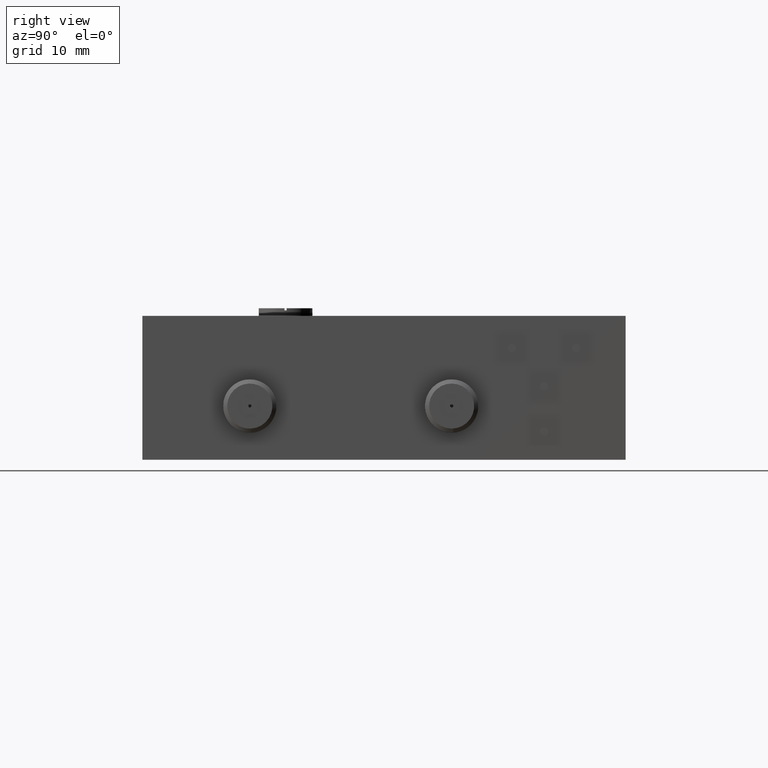
[diagram: clean part render]
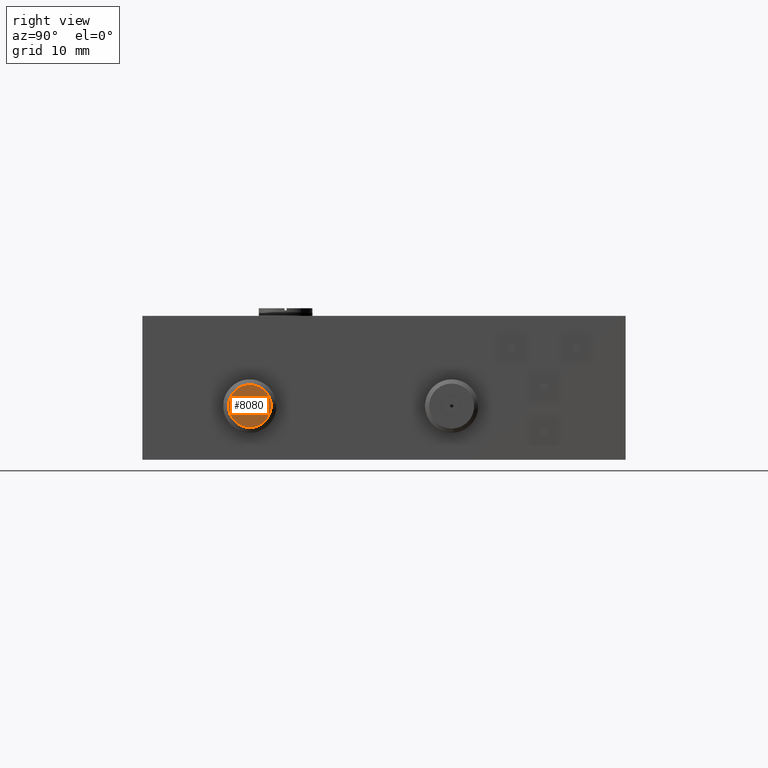
[diagram: same view with one face highlighted and labeled with its STEP entity id]
A machine part, right view. The second image highlights one B-rep face of the part: STEP entity #8080.
In plain terms, the highlighted planar face has unit normal (-1, -0, 0).
Its self-contained STEP definition (entity closure, byte-faithful):
#112 = VERTEX_POINT ( 'NONE', #11651 ) ;
#133 = CIRCLE ( 'NONE', #10646, 0.1000000000000000500 ) ;
#339 = EDGE_CURVE ( 'NONE', #8137, #8333, #3187, .T. ) ;
#406 = PLANE ( 'NONE',  #5367 ) ;
#701 = DIRECTION ( 'NONE',  ( 0.0000000000000000000, 0.04934655404544607800, -0.9987817166948140800 ) ) ;
#812 = DIRECTION ( 'NONE',  ( 0.0000000000000000000, 0.04934655404544520400, -0.9987817166948143000 ) ) ;
#980 = VERTEX_POINT ( 'NONE', #5127 ) ;
#1164 = DIRECTION ( 'NONE',  ( -8.828498614632602400E-031, 0.04934655404544551600, -0.9987817166948141900 ) ) ;
#1481 = ORIENTED_EDGE ( 'NONE', *, *, #8908, .F. ) ;
#2295 = CIRCLE ( 'NONE', #2327, 0.007500000000000008400 ) ;
#2327 = AXIS2_PLACEMENT_3D ( 'NONE', #11896, #8160, #6308 ) ;
#2540 = AXIS2_PLACEMENT_3D ( 'NONE', #8347, #6493, #10094 ) ;
#2725 = EDGE_CURVE ( 'NONE', #980, #112, #133, .T. ) ;
#3187 = CIRCLE ( 'NONE', #4642, 0.007500000000000008400 ) ;
#3201 = ORIENTED_EDGE ( 'NONE', *, *, #2725, .F. ) ;
#3804 = ORIENTED_EDGE ( 'NONE', *, *, #339, .F. ) ;
#4065 = CARTESIAN_POINT ( 'NONE',  ( 1.257228679999999900, -0.6250000000000001100, 0.2499999999999999200 ) ) ;
#4277 = CARTESIAN_POINT ( 'NONE',  ( 1.257228679999999900, -0.6253700991553410300, 0.2574908628752110600 ) ) ;
#4325 = FACE_OUTER_BOUND ( 'NONE', #7639, .T. ) ;
#4562 = DIRECTION ( 'NONE',  ( -1.000000000000000000, 2.764280173765752400E-045, 3.941151930913548000E-045 ) ) ;
#4642 = AXIS2_PLACEMENT_3D ( 'NONE', #11852, #6268, #701 ) ;
#5090 = EDGE_CURVE ( 'NONE', #8333, #8137, #2295, .T. ) ;
#5127 = CARTESIAN_POINT ( 'NONE',  ( 1.257228679999999900, -0.6200653445954555900, 0.1501218283305185100 ) ) ;
#5367 = AXIS2_PLACEMENT_3D ( 'NONE', #4065, #6742, #1164 ) ;
#6268 = DIRECTION ( 'NONE',  ( 1.000000000000000000, -2.764280173765752400E-045, -3.941151930913548000E-045 ) ) ;
#6308 = DIRECTION ( 'NONE',  ( 0.0000000000000000000, 0.04934655404544607800, -0.9987817166948140800 ) ) ;
#6344 = CARTESIAN_POINT ( 'NONE',  ( 1.257228679999999900, -0.6250000000000001100, 0.2499999999999999200 ) ) ;
#6493 = DIRECTION ( 'NONE',  ( -1.000000000000000000, 2.764280173765752400E-045, 3.941151930913548000E-045 ) ) ;
#6742 = DIRECTION ( 'NONE',  ( -1.000000000000000000, -4.356559840270790800E-032, 8.817743002160540300E-031 ) ) ;
#6777 = CIRCLE ( 'NONE', #2540, 0.1000000000000000500 ) ;
#7639 = EDGE_LOOP ( 'NONE', ( #1481, #3201 ) ) ;
#8080 = ADVANCED_FACE ( 'NONE', ( #4325, #8965 ), #406, .F. ) ;
#8137 = VERTEX_POINT ( 'NONE', #11506 ) ;
#8160 = DIRECTION ( 'NONE',  ( 1.000000000000000000, -2.764280173765752400E-045, -3.941151930913548000E-045 ) ) ;
#8333 = VERTEX_POINT ( 'NONE', #4277 ) ;
#8347 = CARTESIAN_POINT ( 'NONE',  ( 1.257228679999999900, -0.6250000000000001100, 0.2499999999999999200 ) ) ;
#8563 = ORIENTED_EDGE ( 'NONE', *, *, #5090, .F. ) ;
#8908 = EDGE_CURVE ( 'NONE', #112, #980, #6777, .T. ) ;
#8965 = FACE_BOUND ( 'NONE', #11079, .T. ) ;
#10094 = DIRECTION ( 'NONE',  ( 0.0000000000000000000, 0.04934655404544520400, -0.9987817166948143000 ) ) ;
#10646 = AXIS2_PLACEMENT_3D ( 'NONE', #6344, #4562, #812 ) ;
#11079 = EDGE_LOOP ( 'NONE', ( #8563, #3804 ) ) ;
#11506 = CARTESIAN_POINT ( 'NONE',  ( 1.257228679999999900, -0.6246299008446593000, 0.2425091371247888000 ) ) ;
#11651 = CARTESIAN_POINT ( 'NONE',  ( 1.257228679999999900, -0.6299346554045446300, 0.3498781716694813200 ) ) ;
#11852 = CARTESIAN_POINT ( 'NONE',  ( 1.257228679999999900, -0.6250000000000001100, 0.2499999999999999200 ) ) ;
#11896 = CARTESIAN_POINT ( 'NONE',  ( 1.257228679999999900, -0.6250000000000001100, 0.2499999999999999200 ) ) ;